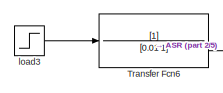
[diagram: root canvas - part 1/5, top left region]
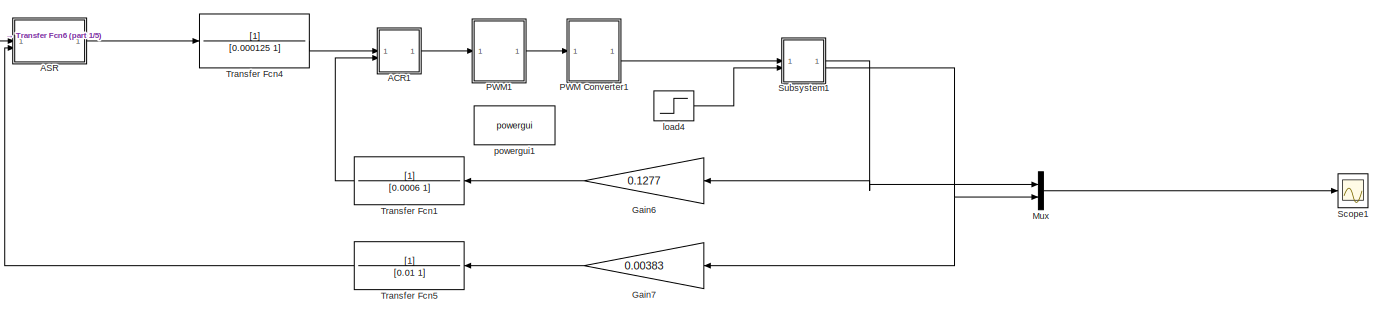
[diagram: root canvas - part 2/5, top center region]
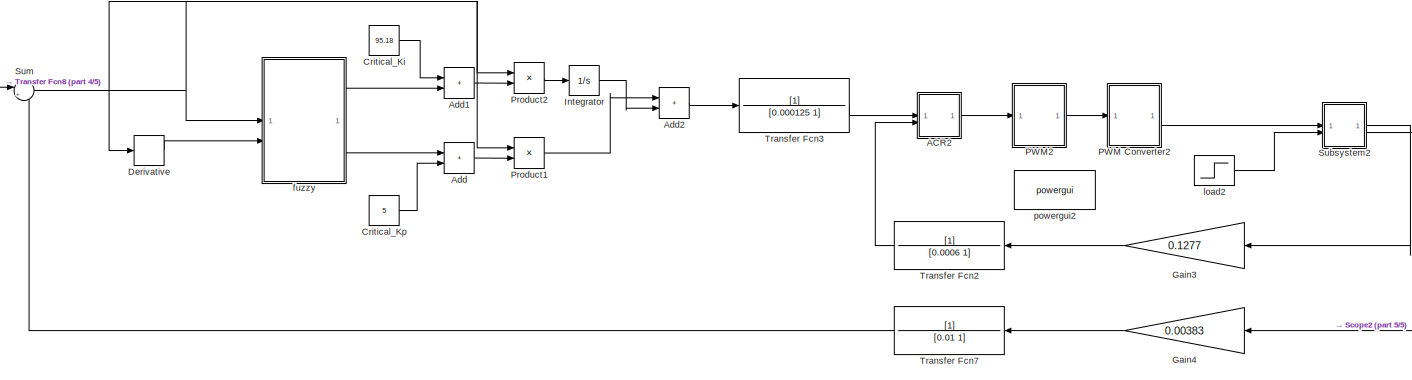
[diagram: root canvas - part 3/5, bottom center region]
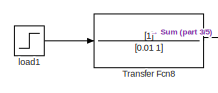
[diagram: root canvas - part 4/5, middle left region]
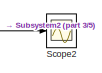
[diagram: root canvas - part 5/5, bottom right region]
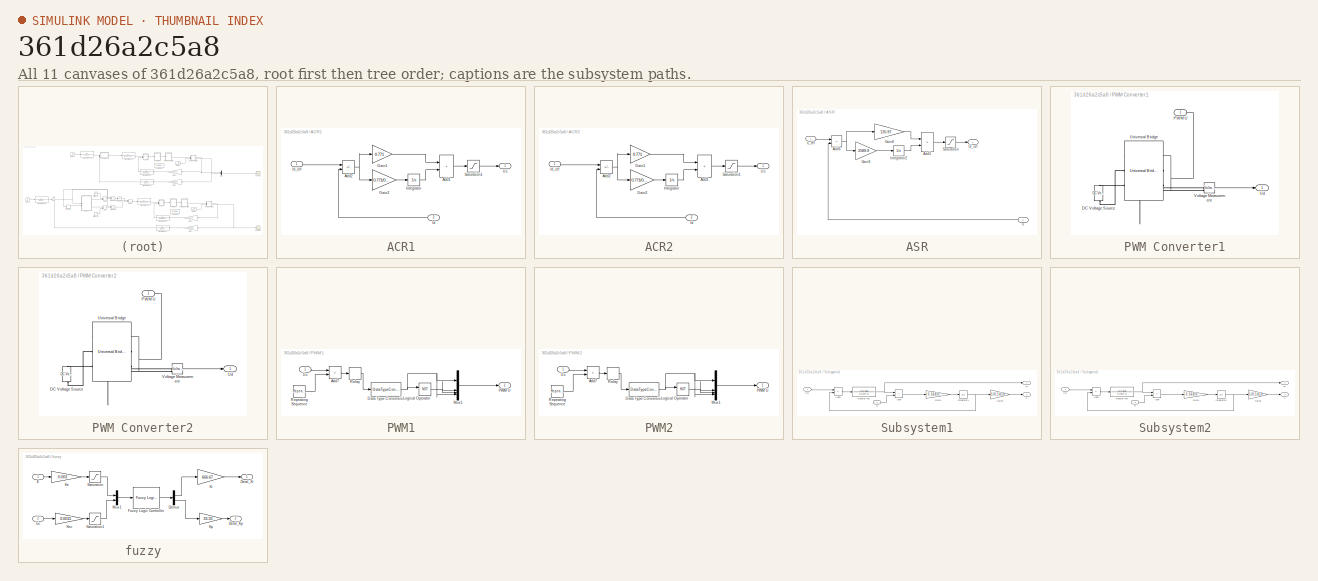
[diagram: thumbnail index - all 11 canvases of the model, root first then tree order]
MODEL slx_361d26a2c5a8
KIND model
CONFIG AbsTol = auto
CONFIG EnableMultiTasking = off
CONFIG FixedStep = auto
CONFIG MaxStep = 1e-5
CONFIG MinStep = auto
CONFIG RelTol = 1e-3
CONFIG SampleTimeConstraint = Unconstrained
CONFIG SolverName = ode45
CONFIG StartTime = 0.0
CONFIG StopTime = 12
BLOCK [SubSystem] ACR1
  Commented = on
BLOCK [Sum] ACR1/Add1
  IconShape = rectangular
BLOCK [Sum] ACR1/Add2
  IconShape = rectangular
  Inputs = +-
BLOCK [Gain] ACR1/Gain1
  Gain = 0.771
BLOCK [Gain] ACR1/Gain2
  Gain = 0.771/0.0144
BLOCK [Inport] ACR1/Id
  Port = 2
BLOCK [Inport] ACR1/Id_ref
BLOCK [Integrator] ACR1/Integrator
  LimitOutput = on
  LowerSaturationLimit = -5
  UpperSaturationLimit = 5
BLOCK [Saturate] ACR1/Saturation1
  LowerLimit = -5
  UpperLimit = 5
BLOCK [Outport] ACR1/Uc
BLOCK [SubSystem] ACR2
BLOCK [Sum] ACR2/Add1
  IconShape = rectangular
BLOCK [Sum] ACR2/Add2
  IconShape = rectangular
  Inputs = +-
BLOCK [Gain] ACR2/Gain1
  Gain = 0.771
BLOCK [Gain] ACR2/Gain2
  Gain = 0.771/0.0144
BLOCK [Inport] ACR2/Id
  Port = 2
BLOCK [Inport] ACR2/Id_ref
BLOCK [Integrator] ACR2/Integrator
  LimitOutput = on
  LowerSaturationLimit = -5
  UpperSaturationLimit = 5
BLOCK [Saturate] ACR2/Saturation1
  LowerLimit = -5
  UpperLimit = 5
BLOCK [Outport] ACR2/Uc
BLOCK [SubSystem] ASR
  Commented = on
BLOCK [Sum] ASR/Add5
  IconShape = rectangular
BLOCK [Sum] ASR/Add6
  IconShape = rectangular
  Inputs = +-
BLOCK [Gain] ASR/Gain8
  Gain = 135.97
BLOCK [Gain] ASR/Gain9
  Gain = 2589.9
BLOCK [Integrator] ASR/Integrator2
  LimitOutput = on
  LowerSaturationLimit = -5
  UpperSaturationLimit = 5
BLOCK [Saturate] ASR/Saturation
  LowerLimit = -5
  UpperLimit = 5
BLOCK [Outport] ASR/Ui_ref
BLOCK [Inport] ASR/n
  Port = 2
BLOCK [Inport] ASR/n_ref
BLOCK [Sum] Add
  IconShape = rectangular
BLOCK [Sum] Add1
  IconShape = rectangular
BLOCK [Sum] Add2
  IconShape = rectangular
BLOCK [Constant] Critical_Ki
  Value = 95.18
BLOCK [Constant] Critical_Kp
  Value = 5
BLOCK [Derivative] Derivative
BLOCK [Gain] Gain3
  Gain = 0.1277
BLOCK [Gain] Gain4
  Gain = 0.00383
BLOCK [Gain] Gain6
  Commented = on
  Gain = 0.1277
BLOCK [Gain] Gain7
  Commented = on
  Gain = 0.00383
BLOCK [Integrator] Integrator
BLOCK [Mux] Mux
  Commented = on
  DisplayOption = bar
  Inputs = 2
BLOCK [SubSystem] PWM Converter1
  Commented = on
BLOCK [Reference] PWM Converter1/DC Voltage Source  REF=spsDCVoltageSourceLib/DC Voltage Source
  LibrarySourceBlock = sps_lib/Sources/DC Voltage Source
  NameLocation = top
  SourceBlock = spsDCVoltageSourceLib/DC Voltage Source
  SourceType = DC Voltage Source
BLOCK [Inport] PWM Converter1/PWM U
BLOCK [Outport] PWM Converter1/Ud
BLOCK [Reference] PWM Converter1/Universal Bridge  REF=spsUniversalBridgeLib/Universal Bridge
  LibrarySourceBlock = sps_lib/Power Electronics/Universal Bridge
  NameLocation = top
  SourceBlock = spsUniversalBridgeLib/Universal Bridge
  SourceType = Universal Bridge
BLOCK [Reference] PWM Converter1/Voltage Measurement  REF=spsVoltageMeasurementLib/Voltage Measurement
  LibrarySourceBlock = sps_lib/Sensors and Measurements/Voltage Measurement
  SourceBlock = spsVoltageMeasurementLib/Voltage Measurement
  SourceType = Voltage Measurement
  UserDataPersistent = on
BLOCK [SubSystem] PWM Converter2
BLOCK [Reference] PWM Converter2/DC Voltage Source  REF=spsDCVoltageSourceLib/DC Voltage Source
  LibrarySourceBlock = sps_lib/Sources/DC Voltage Source
  NameLocation = top
  SourceBlock = spsDCVoltageSourceLib/DC Voltage Source
  SourceType = DC Voltage Source
BLOCK [Inport] PWM Converter2/PWM U
BLOCK [Outport] PWM Converter2/Ud
BLOCK [Reference] PWM Converter2/Universal Bridge  REF=spsUniversalBridgeLib/Universal Bridge
  LibrarySourceBlock = sps_lib/Power Electronics/Universal Bridge
  NameLocation = top
  SourceBlock = spsUniversalBridgeLib/Universal Bridge
  SourceType = Universal Bridge
BLOCK [Reference] PWM Converter2/Voltage Measurement  REF=spsVoltageMeasurementLib/Voltage Measurement
  LibrarySourceBlock = sps_lib/Sensors and Measurements/Voltage Measurement
  SourceBlock = spsVoltageMeasurementLib/Voltage Measurement
  SourceType = Voltage Measurement
  UserDataPersistent = on
BLOCK [SubSystem] PWM1
  Commented = on
BLOCK [Sum] PWM1/Add7
  IconShape = rectangular
BLOCK [DataTypeConversion] PWM1/Data Type Conversion
  OutDataTypeStr = boolean
  RndMeth = Floor
  SaturateOnIntegerOverflow = off
BLOCK [Logic] PWM1/Logical Operator
  AllPortsSameDT = off
  Operator = NOT
  OutDataTypeStr = boolean
BLOCK [Mux] PWM1/Mux1
  DisplayOption = signals
BLOCK [Outport] PWM1/PWM U
BLOCK [Relay] PWM1/Relay
  OffSwitchValue = 0
  OnSwitchValue = 0
BLOCK [Reference] PWM1/Repeating Sequence  REF=simulink/Sources/Repeating
Sequence
  SourceBlock = simulink/Sources/Repeating\nSequence
  SourceType = Repeating table
BLOCK [Inport] PWM1/Uc
BLOCK [SubSystem] PWM2
BLOCK [Sum] PWM2/Add7
  IconShape = rectangular
BLOCK [DataTypeConversion] PWM2/Data Type Conversion
  OutDataTypeStr = boolean
  RndMeth = Floor
  SaturateOnIntegerOverflow = off
BLOCK [Logic] PWM2/Logical Operator
  AllPortsSameDT = off
  Operator = NOT
  OutDataTypeStr = boolean
BLOCK [Mux] PWM2/Mux1
  DisplayOption = signals
BLOCK [Outport] PWM2/PWM U
BLOCK [Relay] PWM2/Relay
  OffSwitchValue = 0
  OnSwitchValue = 0
BLOCK [Reference] PWM2/Repeating Sequence  REF=simulink/Sources/Repeating
Sequence
  SourceBlock = simulink/Sources/Repeating\nSequence
  SourceType = Repeating table
BLOCK [Inport] PWM2/Uc
BLOCK [Product] Product1
BLOCK [Product] Product2
BLOCK [Scope] Scope1
  Commented = on
  Floating = off
  NumInputPorts = 1
  ScopeSpecificationString = Simulink.scopes.TimeScopeBlockCfg('CurrentConfiguration', extmgr.ConfigurationSet(extmgr.Configuration('Core','General UI',true,'FigureColor',[1 1 1]),extmgr.Configuration('Core','Source UI',true),extmgr.Configuration('Sources','WiredSimulink',true,'DataLoggingVariableName','ScopeData1'),extmgr.Configuration('Visuals','Time Domain',true,'SerializedDisplays',{struct('MinYLimReal','-348.14828','MaxY...<+1668ch>
BLOCK [Scope] Scope2
  Floating = off
  NumInputPorts = 1
  ScopeSpecificationString = Simulink.scopes.TimeScopeBlockCfg('CurrentConfiguration', extmgr.ConfigurationSet(extmgr.Configuration('Core','General UI',true,'FigureColor',[1 1 1]),extmgr.Configuration('Core','Source UI',true),extmgr.Configuration('Sources','WiredSimulink',true,'DataLoggingVariableName','ScopeData1'),extmgr.Configuration('Visuals','Time Domain',true,'SerializedDisplays',{struct('MinYLimReal','-450.17869','MaxY...<+1638ch>
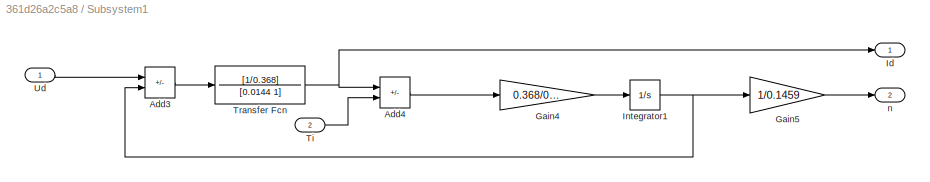
BLOCK [SubSystem] Subsystem1
  Commented = on
BLOCK [Sum] Subsystem1/Add3
  IconShape = rectangular
  Inputs = +-
BLOCK [Sum] Subsystem1/Add4
  IconShape = rectangular
  Inputs = +-
BLOCK [Gain] Subsystem1/Gain4
  Gain = 0.368/0.18
BLOCK [Gain] Subsystem1/Gain5
  Gain = 1/0.1459
BLOCK [Outport] Subsystem1/Id
BLOCK [Integrator] Subsystem1/Integrator1
BLOCK [Inport] Subsystem1/Ti
  Port = 2
BLOCK [TransferFcn] Subsystem1/Transfer Fcn
  Denominator = [0.0144 1]
  Numerator = [1/0.368]
BLOCK [Inport] Subsystem1/Ud
BLOCK [Outport] Subsystem1/n
  Port = 2
BLOCK [SubSystem] Subsystem2
BLOCK [Sum] Subsystem2/Add3
  IconShape = rectangular
  Inputs = +-
BLOCK [Sum] Subsystem2/Add4
  IconShape = rectangular
  Inputs = +-
BLOCK [Gain] Subsystem2/Gain4
  Gain = 0.368/0.18
BLOCK [Gain] Subsystem2/Gain5
  Gain = 1/0.1459
BLOCK [Outport] Subsystem2/Id
BLOCK [Integrator] Subsystem2/Integrator1
BLOCK [Inport] Subsystem2/Ti
  Port = 2
BLOCK [TransferFcn] Subsystem2/Transfer Fcn
  Denominator = [0.0144 1]
  Numerator = [1/0.368]
BLOCK [Inport] Subsystem2/Ud
BLOCK [Outport] Subsystem2/n
  Port = 2
BLOCK [Sum] Sum
  Inputs = |+-
BLOCK [TransferFcn] Transfer Fcn1
  Commented = on
  Denominator = [0.0006 1]
BLOCK [TransferFcn] Transfer Fcn2
  Denominator = [0.0006 1]
BLOCK [TransferFcn] Transfer Fcn3
  Denominator = [0.000125 1]
  NameLocation = left
BLOCK [TransferFcn] Transfer Fcn4
  Commented = on
  Denominator = [0.000125 1]
  NameLocation = left
BLOCK [TransferFcn] Transfer Fcn5
  Commented = on
  Denominator = [0.01 1]
BLOCK [TransferFcn] Transfer Fcn6
  Commented = on
  Denominator = [0.01 1]
BLOCK [TransferFcn] Transfer Fcn7
  Denominator = [0.01 1]
BLOCK [TransferFcn] Transfer Fcn8
  Denominator = [0.01 1]
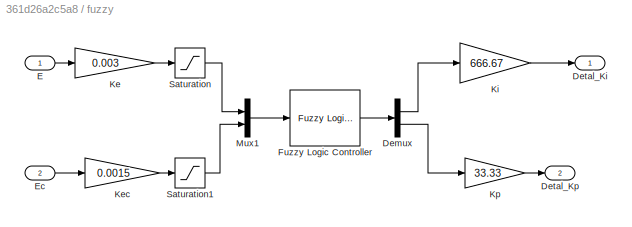
BLOCK [SubSystem] fuzzy
BLOCK [Demux] fuzzy/Demux
  Outputs = 2
BLOCK [Outport] fuzzy/Detal_Ki
BLOCK [Outport] fuzzy/Detal_Kp
  Port = 2
BLOCK [Inport] fuzzy/E
BLOCK [Inport] fuzzy/Ec
  Port = 2
BLOCK [Reference] fuzzy/Fuzzy Logic Controller  REF=fuzblock/Fuzzy Logic   (lib defined in mdl_858b3b3e7478)
Controller
  SourceBlock = fuzblock/Fuzzy Logic \nController
  SourceType = Fuzzy Inference System
BLOCK [Gain] fuzzy/Ke
  Gain = 0.003
BLOCK [Gain] fuzzy/Kec
  Gain = 0.0015
BLOCK [Gain] fuzzy/Ki
  Gain = 666.67
BLOCK [Gain] fuzzy/Kp
  Gain = 33.33
BLOCK [Mux] fuzzy/Mux1
  DisplayOption = bar
  Inputs = 2
BLOCK [Saturate] fuzzy/Saturation
BLOCK [Saturate] fuzzy/Saturation1
BLOCK [Step] load1
  After = 10
  SampleTime = 0
  Time = 0
BLOCK [Step] load2
  After = 0
  SampleTime = 0
  Time = 0
BLOCK [Step] load3
  After = 10
  Commented = on
  SampleTime = 0
  Time = 0
BLOCK [Step] load4
  After = 0
  Commented = on
  SampleTime = 0
  Time = 0
BLOCK [Reference] powergui1  REF=spspowerguiLib/powergui
  Commented = on
  LibrarySourceBlock = sps_lib/powergui
  Priority = 1
  SourceBlock = spspowerguiLib/powergui
  SourceType = PSB option menu block
BLOCK [Reference] powergui2  REF=sps_lib/powergui
  LibrarySourceBlock = sps_lib/powergui
  Priority = 1
  SourceBlock = sps_lib/powergui
  SourceType = PSB option menu block
LINE ACR1/Add1:1 -> ACR1/Saturation1:1
NET ACR1/Add2:1 -> ACR1/Gain1:1, ACR1/Gain2:1
LINE ACR1/Gain1:1 -> ACR1/Add1:1
LINE ACR1/Gain2:1 -> ACR1/Integrator:1
LINE ACR1/Id:1 -> ACR1/Add2:2
LINE ACR1/Id_ref:1 -> ACR1/Add2:1
LINE ACR1/Integrator:1 -> ACR1/Add1:2
LINE ACR1/Saturation1:1 -> ACR1/Uc:1
LINE ACR1:1 -> PWM1:1
LINE ACR2/Add1:1 -> ACR2/Saturation1:1
NET ACR2/Add2:1 -> ACR2/Gain1:1, ACR2/Gain2:1
LINE ACR2/Gain1:1 -> ACR2/Add1:1
LINE ACR2/Gain2:1 -> ACR2/Integrator:1
LINE ACR2/Id:1 -> ACR2/Add2:2
LINE ACR2/Id_ref:1 -> ACR2/Add2:1
LINE ACR2/Integrator:1 -> ACR2/Add1:2
LINE ACR2/Saturation1:1 -> ACR2/Uc:1
LINE ACR2:1 -> PWM2:1
LINE ASR/Add5:1 -> ASR/Saturation:1
NET ASR/Add6:1 -> ASR/Gain8:1, ASR/Gain9:1
LINE ASR/Gain8:1 -> ASR/Add5:1
LINE ASR/Gain9:1 -> ASR/Integrator2:1
LINE ASR/Integrator2:1 -> ASR/Add5:2
LINE ASR/Saturation:1 -> ASR/Ui_ref:1
LINE ASR/n:1 -> ASR/Add6:2
LINE ASR/n_ref:1 -> ASR/Add6:1
LINE ASR:1 -> Transfer Fcn4:1
LINE Add1:1 -> Product2:2
LINE Add2:1 -> Transfer Fcn3:1
LINE Add:1 -> Product1:2
LINE Critical_Ki:1 -> Add1:1
LINE Critical_Kp:1 -> Add:2
LINE Derivative:1 -> fuzzy:2
LINE Gain3:1 -> Transfer Fcn2:1
LINE Gain4:1 -> Transfer Fcn7:1
LINE Gain6:1 -> Transfer Fcn1:1
LINE Gain7:1 -> Transfer Fcn5:1
LINE Integrator:1 -> Add2:2
LINE Mux:1 -> Scope1:1
LINE PWM Converter1/PWM U:1 -> PWM Converter1/Universal Bridge:1
LINE PWM Converter1/Voltage Measurement:1 -> PWM Converter1/Ud:1
LINE PWM Converter1:1 -> Subsystem1:1
LINE PWM Converter2/PWM U:1 -> PWM Converter2/Universal Bridge:1
LINE PWM Converter2/Voltage Measurement:1 -> PWM Converter2/Ud:1
LINE PWM Converter2:1 -> Subsystem2:1
LINE PWM1/Add7:1 -> PWM1/Relay:1
NET PWM1/Data Type Conversion:1 -> PWM1/Logical Operator:1, PWM1/Mux1:1, PWM1/Mux1:4
NET PWM1/Logical Operator:1 -> PWM1/Mux1:2, PWM1/Mux1:3
LINE PWM1/Mux1:1 -> PWM1/PWM U:1
LINE PWM1/Relay:1 -> PWM1/Data Type Conversion:1
LINE PWM1/Repeating Sequence:1 -> PWM1/Add7:2
LINE PWM1/Uc:1 -> PWM1/Add7:1
LINE PWM1:1 -> PWM Converter1:1
LINE PWM2/Add7:1 -> PWM2/Relay:1
NET PWM2/Data Type Conversion:1 -> PWM2/Logical Operator:1, PWM2/Mux1:1, PWM2/Mux1:4
NET PWM2/Logical Operator:1 -> PWM2/Mux1:2, PWM2/Mux1:3
LINE PWM2/Mux1:1 -> PWM2/PWM U:1
LINE PWM2/Relay:1 -> PWM2/Data Type Conversion:1
LINE PWM2/Repeating Sequence:1 -> PWM2/Add7:2
LINE PWM2/Uc:1 -> PWM2/Add7:1
LINE PWM2:1 -> PWM Converter2:1
LINE Product1:1 -> Add2:1
LINE Product2:1 -> Integrator:1
LINE Subsystem1/Add3:1 -> Subsystem1/Transfer Fcn:1
LINE Subsystem1/Add4:1 -> Subsystem1/Gain4:1
LINE Subsystem1/Gain4:1 -> Subsystem1/Integrator1:1
LINE Subsystem1/Gain5:1 -> Subsystem1/n:1
NET Subsystem1/Integrator1:1 -> Subsystem1/Add3:2, Subsystem1/Gain5:1
LINE Subsystem1/Ti:1 -> Subsystem1/Add4:2
NET Subsystem1/Transfer Fcn:1 -> Subsystem1/Add4:1, Subsystem1/Id:1
LINE Subsystem1/Ud:1 -> Subsystem1/Add3:1
NET Subsystem1:1 -> Gain6:1, Mux:1
NET Subsystem1:2 -> Gain7:1, Mux:2
LINE Subsystem2/Add3:1 -> Subsystem2/Transfer Fcn:1
LINE Subsystem2/Add4:1 -> Subsystem2/Gain4:1
LINE Subsystem2/Gain4:1 -> Subsystem2/Integrator1:1
LINE Subsystem2/Gain5:1 -> Subsystem2/n:1
NET Subsystem2/Integrator1:1 -> Subsystem2/Add3:2, Subsystem2/Gain5:1
LINE Subsystem2/Ti:1 -> Subsystem2/Add4:2
NET Subsystem2/Transfer Fcn:1 -> Subsystem2/Add4:1, Subsystem2/Id:1
LINE Subsystem2/Ud:1 -> Subsystem2/Add3:1
LINE Subsystem2:1 -> Gain3:1
NET Subsystem2:2 -> Gain4:1, Scope2:1
NET Sum:1 -> Derivative:1, Product1:1, Product2:1, fuzzy:1
LINE Transfer Fcn1:1 -> ACR1:2
LINE Transfer Fcn2:1 -> ACR2:2
LINE Transfer Fcn3:1 -> ACR2:1
LINE Transfer Fcn4:1 -> ACR1:1
LINE Transfer Fcn5:1 -> ASR:2
LINE Transfer Fcn6:1 -> ASR:1
LINE Transfer Fcn7:1 -> Sum:2
LINE Transfer Fcn8:1 -> Sum:1
LINE fuzzy/Demux:1 -> fuzzy/Ki:1
LINE fuzzy/Demux:2 -> fuzzy/Kp:1
LINE fuzzy/E:1 -> fuzzy/Ke:1
LINE fuzzy/Ec:1 -> fuzzy/Kec:1
LINE fuzzy/Fuzzy Logic Controller:1 -> fuzzy/Demux:1
LINE fuzzy/Ke:1 -> fuzzy/Saturation:1
LINE fuzzy/Kec:1 -> fuzzy/Saturation1:1
LINE fuzzy/Ki:1 -> fuzzy/Detal_Ki:1
LINE fuzzy/Kp:1 -> fuzzy/Detal_Kp:1
LINE fuzzy/Mux1:1 -> fuzzy/Fuzzy Logic Controller:1
LINE fuzzy/Saturation1:1 -> fuzzy/Mux1:2
LINE fuzzy/Saturation:1 -> fuzzy/Mux1:1
LINE fuzzy:1 -> Add1:2
LINE fuzzy:2 -> Add:1
LINE load1:1 -> Transfer Fcn8:1
LINE load2:1 -> Subsystem2:2
LINE load3:1 -> Transfer Fcn6:1
LINE load4:1 -> Subsystem1:2
PLINE PWM Converter1/DC Voltage Source:LConn1 -- PWM Converter1/Universal Bridge:RConn2
PLINE PWM Converter1/DC Voltage Source:RConn1 -- PWM Converter1/Universal Bridge:RConn1
PLINE PWM Converter1/Universal Bridge:LConn1 -- PWM Converter1/Voltage Measurement:LConn1
PLINE PWM Converter1/Universal Bridge:LConn2 -- PWM Converter1/Voltage Measurement:LConn2
PLINE PWM Converter2/DC Voltage Source:LConn1 -- PWM Converter2/Universal Bridge:RConn2
PLINE PWM Converter2/DC Voltage Source:RConn1 -- PWM Converter2/Universal Bridge:RConn1
PLINE PWM Converter2/Universal Bridge:LConn1 -- PWM Converter2/Voltage Measurement:LConn1
PLINE PWM Converter2/Universal Bridge:LConn2 -- PWM Converter2/Voltage Measurement:LConn2
note: NET lines group one-source signal fan-out (src -> all destinations, sorted); 1:1 wires keep LINE
